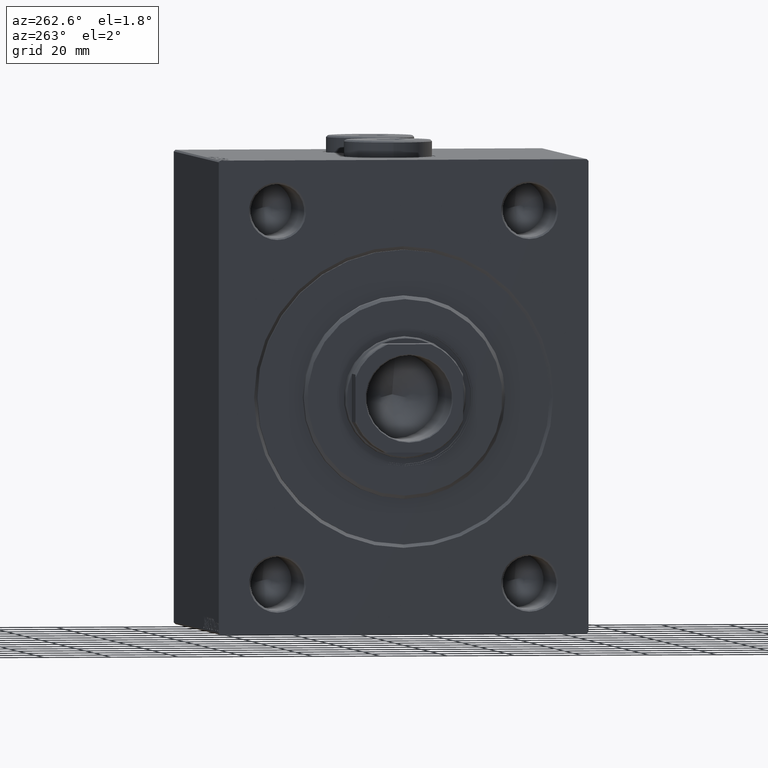
[diagram: clean part render]
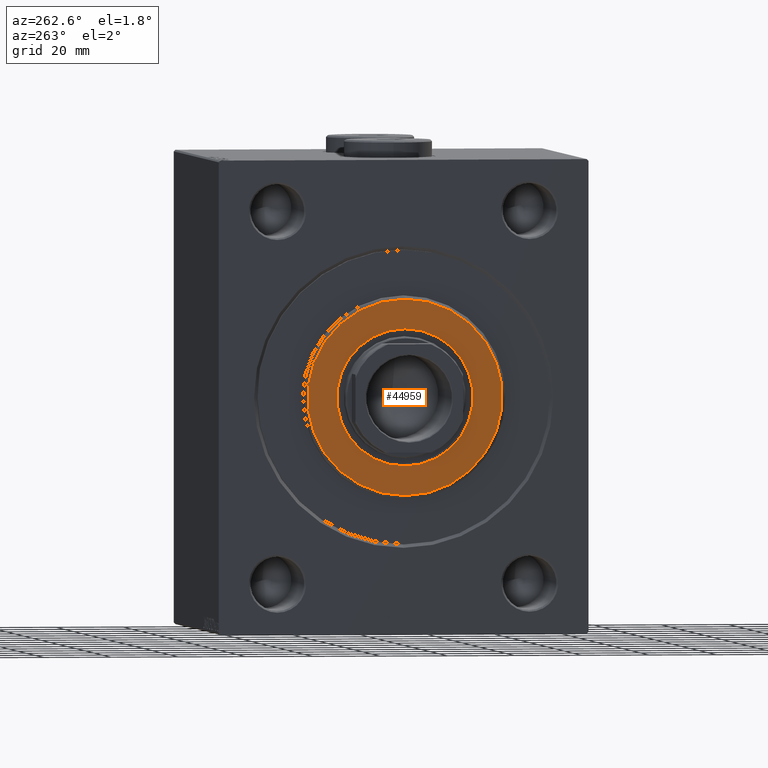
[diagram: same view with one face highlighted and labeled with its STEP entity id]
A machine part, auxiliary view. The second image highlights one B-rep face of the part: STEP entity #44959.
In plain terms, the highlighted planar face has unit normal (-1, 0, 0).
Its self-contained STEP definition (entity closure, byte-faithful):
#2452 = VERTEX_POINT ( 'NONE', #41940 ) ;
#3167 = EDGE_CURVE ( 'NONE', #11484, #2452, #36688, .T. ) ;
#3550 = DIRECTION ( 'NONE',  ( 1.000000000000000000, -0.000000000000000000, 0.000000000000000000 ) ) ;
#4151 = CARTESIAN_POINT ( 'NONE',  ( 3.000000000000000000, 0.000000000000000000, 0.000000000000000000 ) ) ;
#4838 = EDGE_CURVE ( 'NONE', #24000, #45147, #44095, .T. ) ;
#5232 = DIRECTION ( 'NONE',  ( 1.000000000000000000, -0.000000000000000000, 0.000000000000000000 ) ) ;
#5823 = CIRCLE ( 'NONE', #27149, 20.25000000000000000 ) ;
#6962 = AXIS2_PLACEMENT_3D ( 'NONE', #22525, #5232, #25488 ) ;
#8230 = FACE_BOUND ( 'NONE', #42043, .T. ) ;
#8470 = PLANE ( 'NONE',  #6962 ) ;
#8729 = AXIS2_PLACEMENT_3D ( 'NONE', #4151, #21423, #18179 ) ;
#8741 = EDGE_CURVE ( 'NONE', #2452, #11484, #13117, .T. ) ;
#9964 = EDGE_LOOP ( 'NONE', ( #42837, #34416 ) ) ;
#10045 = CARTESIAN_POINT ( 'NONE',  ( 3.000000000000000000, 0.000000000000000000, -20.25000000000000000 ) ) ;
#11484 = VERTEX_POINT ( 'NONE', #23140 ) ;
#13080 = DIRECTION ( 'NONE',  ( 1.000000000000000000, 0.000000000000000000, 0.000000000000000000 ) ) ;
#13117 = CIRCLE ( 'NONE', #8729, 29.00000000000002132 ) ;
#13316 = CARTESIAN_POINT ( 'NONE',  ( 3.000000000000000000, 0.000000000000000000, 0.000000000000000000 ) ) ;
#14544 = EDGE_CURVE ( 'NONE', #45147, #24000, #5823, .T. ) ;
#18179 = DIRECTION ( 'NONE',  ( 0.000000000000000000, 0.000000000000000000, -1.000000000000000000 ) ) ;
#18820 = FACE_OUTER_BOUND ( 'NONE', #9964, .T. ) ;
#20676 = CARTESIAN_POINT ( 'NONE',  ( 3.000000000000000000, 2.479909768273390300E-15, 20.25000000000000000 ) ) ;
#21423 = DIRECTION ( 'NONE',  ( 1.000000000000000000, -0.000000000000000000, 0.000000000000000000 ) ) ;
#22388 = ORIENTED_EDGE ( 'NONE', *, *, #14544, .F. ) ;
#22525 = CARTESIAN_POINT ( 'NONE',  ( 3.000000000000000000, 0.000000000000000000, 0.000000000000000000 ) ) ;
#23140 = CARTESIAN_POINT ( 'NONE',  ( 3.000000000000000000, 0.000000000000000000, 29.00000000000002132 ) ) ;
#24000 = VERTEX_POINT ( 'NONE', #20676 ) ;
#25488 = DIRECTION ( 'NONE',  ( 0.000000000000000000, 0.000000000000000000, -1.000000000000000000 ) ) ;
#26259 = CARTESIAN_POINT ( 'NONE',  ( 3.000000000000000000, 0.000000000000000000, 0.000000000000000000 ) ) ;
#27149 = AXIS2_PLACEMENT_3D ( 'NONE', #26259, #29932, #43984 ) ;
#28169 = CARTESIAN_POINT ( 'NONE',  ( 3.000000000000000000, 0.000000000000000000, 0.000000000000000000 ) ) ;
#29932 = DIRECTION ( 'NONE',  ( 1.000000000000000000, 0.000000000000000000, 0.000000000000000000 ) ) ;
#31621 = DIRECTION ( 'NONE',  ( 0.000000000000000000, 0.000000000000000000, -1.000000000000000000 ) ) ;
#34416 = ORIENTED_EDGE ( 'NONE', *, *, #8741, .T. ) ;
#35201 = AXIS2_PLACEMENT_3D ( 'NONE', #28169, #3550, #31621 ) ;
#36688 = CIRCLE ( 'NONE', #35201, 29.00000000000002132 ) ;
#37505 = AXIS2_PLACEMENT_3D ( 'NONE', #13316, #13080, #40720 ) ;
#40720 = DIRECTION ( 'NONE',  ( 0.000000000000000000, 0.000000000000000000, -1.000000000000000000 ) ) ;
#41940 = CARTESIAN_POINT ( 'NONE',  ( 3.000000000000000000, 3.612708057484693181E-15, -29.00000000000002132 ) ) ;
#41944 = ORIENTED_EDGE ( 'NONE', *, *, #4838, .F. ) ;
#42043 = EDGE_LOOP ( 'NONE', ( #22388, #41944 ) ) ;
#42837 = ORIENTED_EDGE ( 'NONE', *, *, #3167, .T. ) ;
#43984 = DIRECTION ( 'NONE',  ( 0.000000000000000000, 0.000000000000000000, -1.000000000000000000 ) ) ;
#44095 = CIRCLE ( 'NONE', #37505, 20.25000000000000000 ) ;
#44959 = ADVANCED_FACE ( 'NONE', ( #18820, #8230 ), #8470, .T. ) ;
#45147 = VERTEX_POINT ( 'NONE', #10045 ) ;